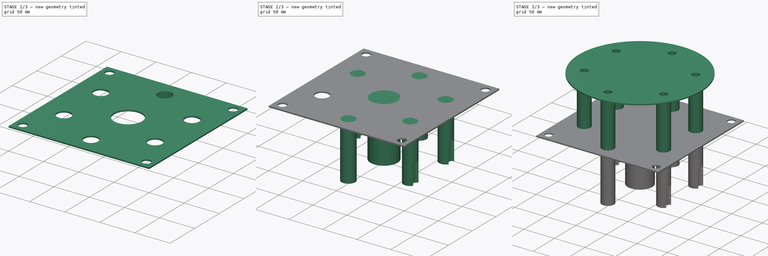
[diagram: build sequence overview — one tinted view per stage of 3, left to right]
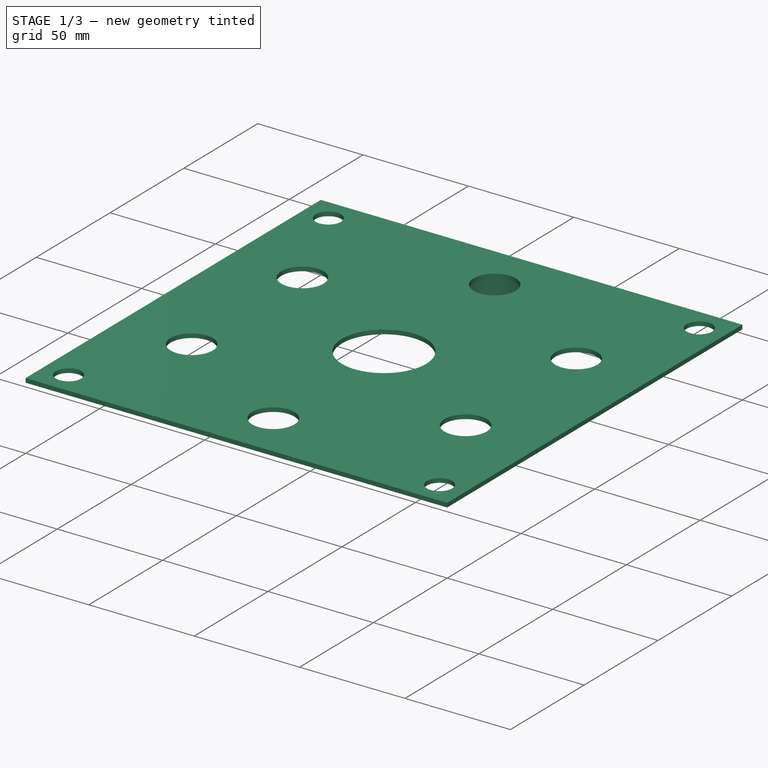
[diagram: stage 1 of 3 — iso view after this stage's code; geometry added in this stage tinted green]
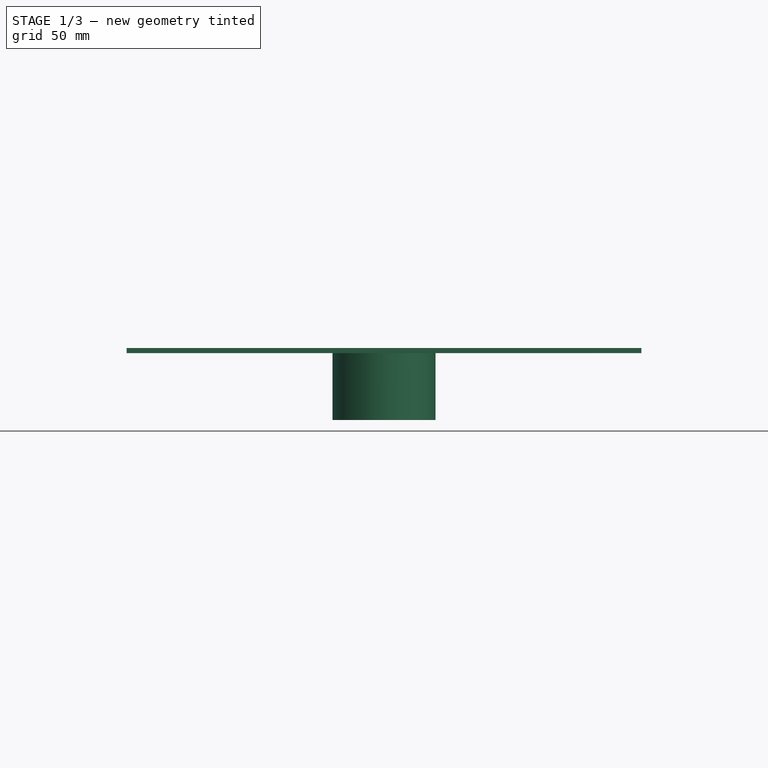
[diagram: stage 1 of 3 — front view after this stage's code; geometry added in this stage tinted green]
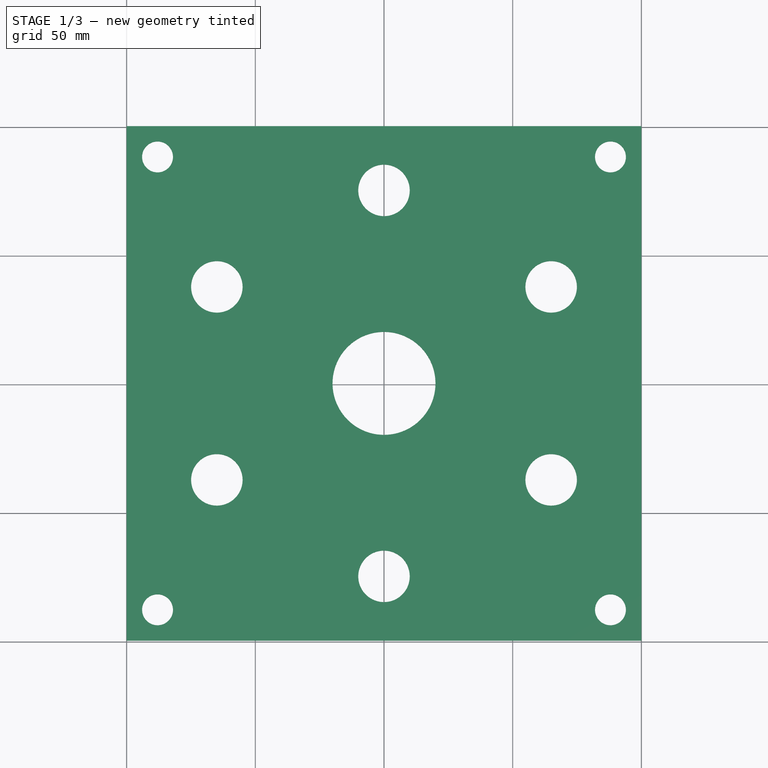
[diagram: stage 1 of 3 — top view after this stage's code; geometry added in this stage tinted green]
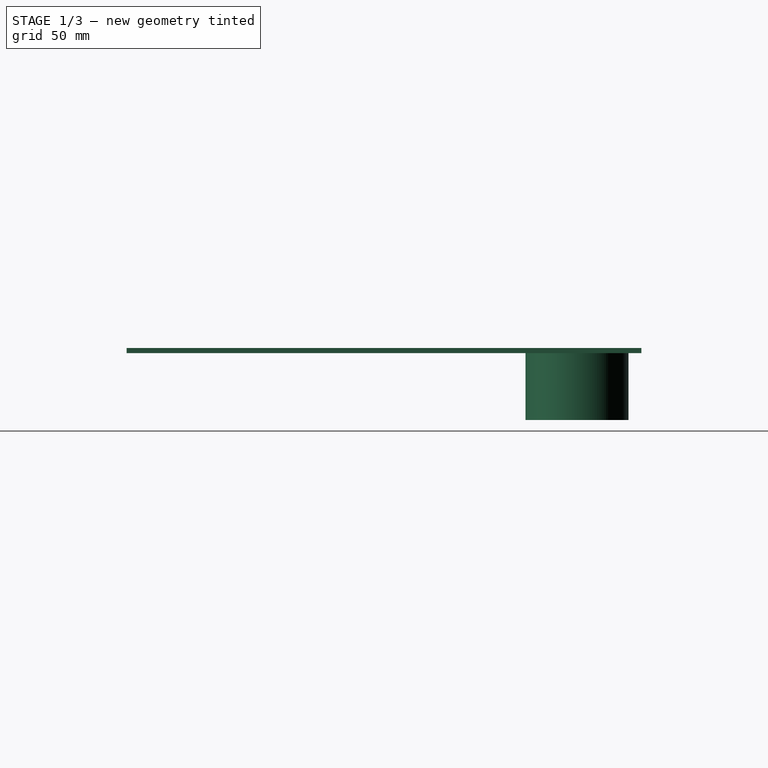
[diagram: stage 1 of 3 — right view after this stage's code; geometry added in this stage tinted green]
FCSTD DOCUMENT  (FreeCAD 0.17R12794 (Git))
Label: robot2
License: All rights reserved
LicenseURL: http://en.wikipedia.org/wiki/All_rights_reserved
objects: Sketcher::SketchObject×5, PartDesign::Pad×4, PartDesign::FeatureBase×3, PartDesign::Body×3, Part::Feature×1, PartDesign::Pocket×1
note: 22 computed .brp shape members not serialized (recipe doc carries the construction recipe); baked Part::Feature solids carry a one-line shape summary decoded from their .brp

FEATURE [Part::Feature] Part__Feature  label="NEMA23_ST57H703"
  shape: bbox 58.58 x 63.99 x 97 mm, 205 faces (baked)
FEATURE [Sketcher::SketchObject] Sketch001
  MapMode = 5
  sketch-geometry (22):
    g0: LineSegment StartX=0 StartY=0 StartZ=0 EndX=200 EndY=0 EndZ=0
    g1: LineSegment StartX=200 StartY=0 StartZ=0 EndX=200 EndY=200 EndZ=0
    g2: LineSegment StartX=200 StartY=200 StartZ=0 EndX=0 EndY=200 EndZ=0
    g3: LineSegment StartX=0 StartY=200 StartZ=0 EndX=0 EndY=0 EndZ=0
    g4: Circle CenterX=12 CenterY=12 CenterZ=0 NormalX=0 NormalY=0 NormalZ=1 AngleXU=0 Radius=6
    g5: Circle CenterX=12 CenterY=188 CenterZ=0 NormalX=0 NormalY=0 NormalZ=1 AngleXU=0 Radius=6
    g6: Circle CenterX=188 CenterY=188 CenterZ=0 NormalX=0 NormalY=0 NormalZ=1 AngleXU=0 Radius=6
    g7: Circle CenterX=188 CenterY=12 CenterZ=0 NormalX=0 NormalY=0 NormalZ=1 AngleXU=0 Radius=6
    g8: LineSegment [constr] StartX=164.952 StartY=62.5 StartZ=0 EndX=164.952 EndY=137.5 EndZ=0
    g9: LineSegment [constr] StartX=164.952 StartY=137.5 StartZ=0 EndX=100 EndY=175 EndZ=0
    g10: LineSegment [constr] StartX=100 StartY=175 StartZ=0 EndX=35.0481 EndY=137.5 EndZ=0
    g11: LineSegment [constr] StartX=35.0481 StartY=137.5 StartZ=0 EndX=35.0481 EndY=62.5 EndZ=0
    g12: LineSegment [constr] StartX=35.0481 StartY=62.5 StartZ=0 EndX=100 EndY=25 EndZ=0
    g13: LineSegment [constr] StartX=100 StartY=25 StartZ=0 EndX=164.952 EndY=62.5 EndZ=0
    g14: Circle [constr] CenterX=100 CenterY=100 CenterZ=0 NormalX=0 NormalY=0 NormalZ=1 AngleXU=0 Radius=75
    g15: Circle CenterX=100 CenterY=175 CenterZ=0 NormalX=0 NormalY=0 NormalZ=1 AngleXU=0 Radius=10
    g16: Circle CenterX=35.0481 CenterY=137.5 CenterZ=0 NormalX=0 NormalY=0 NormalZ=1 AngleXU=0 Radius=10
    g17: Circle CenterX=35.0481 CenterY=62.5 CenterZ=0 NormalX=0 NormalY=0 NormalZ=1 AngleXU=0 Radius=10
    g18: Circle CenterX=100 CenterY=25 CenterZ=0 NormalX=0 NormalY=0 NormalZ=1 AngleXU=0 Radius=10
    g19: Circle CenterX=164.952 CenterY=62.5 CenterZ=0 NormalX=0 NormalY=0 NormalZ=1 AngleXU=0 Radius=10
    g20: Circle CenterX=164.952 CenterY=137.5 CenterZ=0 NormalX=0 NormalY=0 NormalZ=1 AngleXU=0 Radius=10
    g21: Circle CenterX=100 CenterY=100 CenterZ=0 NormalX=0 NormalY=0 NormalZ=1 AngleXU=0 Radius=20
  constraints (54):
    c: Coincident(g0,g1)
    c: Coincident(g1,g2)
    c: Coincident(g2,g3)
    c: Coincident(g3,g0)
    c: Horizontal(g0)
    c: Horizontal(g2)
    c: Vertical(g1)
    c: Vertical(g3)
    c: Coincident(g0,g-1)
    c: DistanceY(g1,g1) = 200
    c: DistanceX(g2,g2) = 200
    c: Radius(g4) = 6
    c: Equal(g4,g5) = 6
    c: DistanceY(g-1,g4) = 12
    c: DistanceX(g-1,g4) = 12
    c: Equal(g5,g6)
    c: Equal(g6,g7)
    c: DistanceY(g4,g7) = 0
    c: DistanceX(g4,g5) = 0
    c: DistanceY(g5,g6) = 0
    c: DistanceX(g6,g7) = 0
    c: DistanceX(g7,g0) = 12
    c: DistanceY(g6,g1) = 12
    c: Coincident(g8,g9)
    c: Coincident(g9,g10)
    c: Coincident(g10,g11)
    c: Coincident(g11,g12)
    c: Coincident(g12,g13)
    c: Coincident(g13,g8)
    c: Equal(g8, g9-g13) x5
    c: PointOnObject(g8,g14)
    c: PointOnObject(g9,g14)
    c: PointOnObject(g10,g14)
    c: PointOnObject(g11,g14)
    c: PointOnObject(g12,g14)
    c: PointOnObject(g13,g14)
    c: DistanceX(g-1,g14) = 100
    c: DistanceY(g-1,g14) = 100
    c: Parallel(g11,g3)
    c: Radius(g14) = 75
    c: Radius(g15) = 10
    c: Coincident(g15,g9)
    c: Equal(g15,g16)
    c: Equal(g16,g17)
    c: Equal(g17,g18)
    c: Equal(g18,g19)
    c: Equal(g19,g20)
    c: Coincident(g16,g10)
    c: Coincident(g17,g11)
    c: Coincident(g18,g12)
    c: Coincident(g19,g8)
    c: Coincident(g20,g8)
    c: Coincident(g21,g14)
    c: Radius(g21) = 20
FEATURE [PartDesign::Pad] Pad  label="bottom"
  Length = 2
  Length2 = 100
  Profile = -> Sketch001
  Type = 0
FEATURE [PartDesign::FeatureBase] BaseFeature
  BaseFeature = -> Pad
FEATURE [PartDesign::Body] Body002
  BaseFeature = -> Pad002
  Group = -> [BaseFeature002]
  Origin = -> Origin002
  Tip = -> BaseFeature002
FEATURE [Sketcher::SketchObject] Sketch004
  ExternalGeometry = -> [BaseFeature]
  MapMode = 5
  Placement = pos=(0,0,0) rot=(1,0,0;3.14159rad)
  Support = -> [BaseFeature]
  sketch-geometry (4):
    g0: LineSegment [constr] StartX=100 StartY=-175 StartZ=0 EndX=164.952 EndY=-137.5 EndZ=0
    g1: LineSegment [constr] StartX=100 StartY=-100 StartZ=0 EndX=100 EndY=-25 EndZ=0
    g2: Circle CenterX=100 CenterY=-175 CenterZ=0 NormalX=0 NormalY=0 NormalZ=1 AngleXU=0 Radius=15
    g3: Circle CenterX=100 CenterY=-175 CenterZ=0 NormalX=0 NormalY=0 NormalZ=1 AngleXU=0 Radius=20
  constraints (9):
    c: Coincident(g1,g-3)
    c: Coincident(g0,g-6)
    c: Coincident(g1,g-5)
    c: Coincident(g0,g-4)
    c: PointOnObject(g2,g1)
    c: PointOnObject(g2,g0)
    c: Radius(g2) = 15
    c: Coincident(g3,g2)
    c: Radius(g3) = 20
FEATURE [PartDesign::Pad] Pad003
  BaseFeature = -> BaseFeature
  Length = 26
  Length2 = 100
  Profile = -> Sketch004
  Type = 0
FEATURE [PartDesign::Body] Body
  BaseFeature = -> Pad
  Group = -> [BaseFeature,Sketch004,Pad003]
  Origin = -> Origin
  Tip = -> Pad003
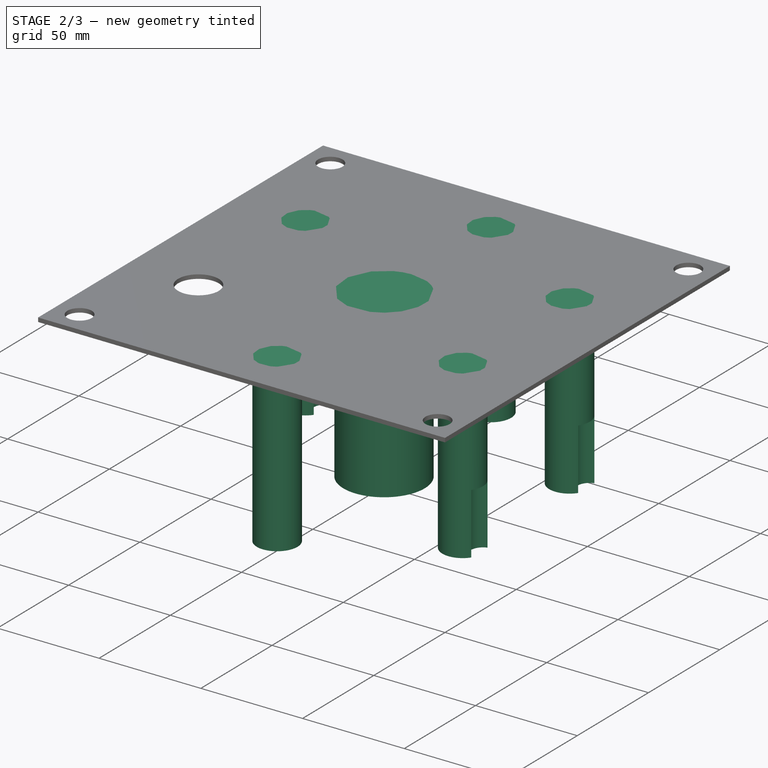
[diagram: stage 2 of 3 — iso view after this stage's code; geometry added in this stage tinted green]
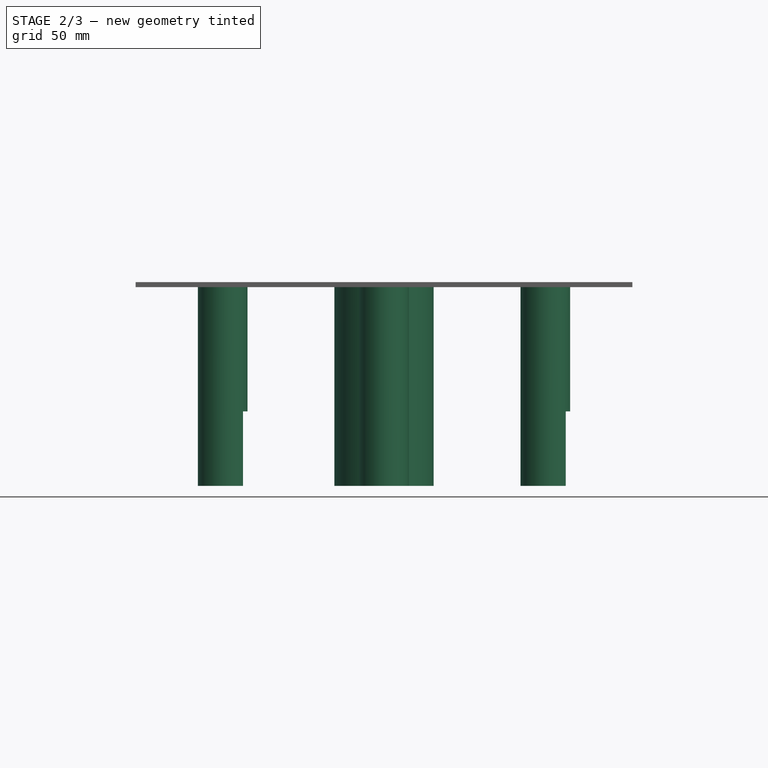
[diagram: stage 2 of 3 — front view after this stage's code; geometry added in this stage tinted green]
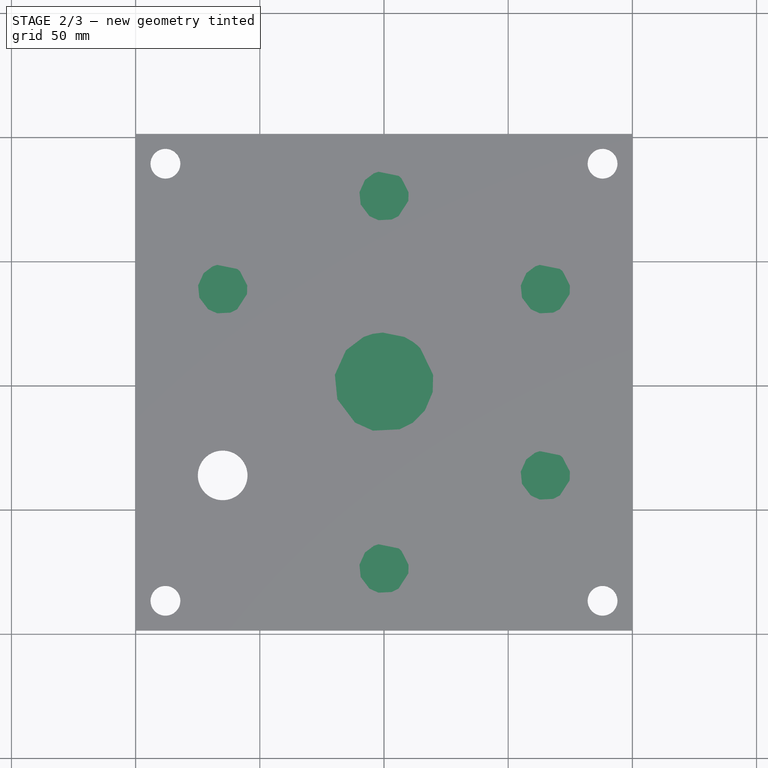
[diagram: stage 2 of 3 — top view after this stage's code; geometry added in this stage tinted green]
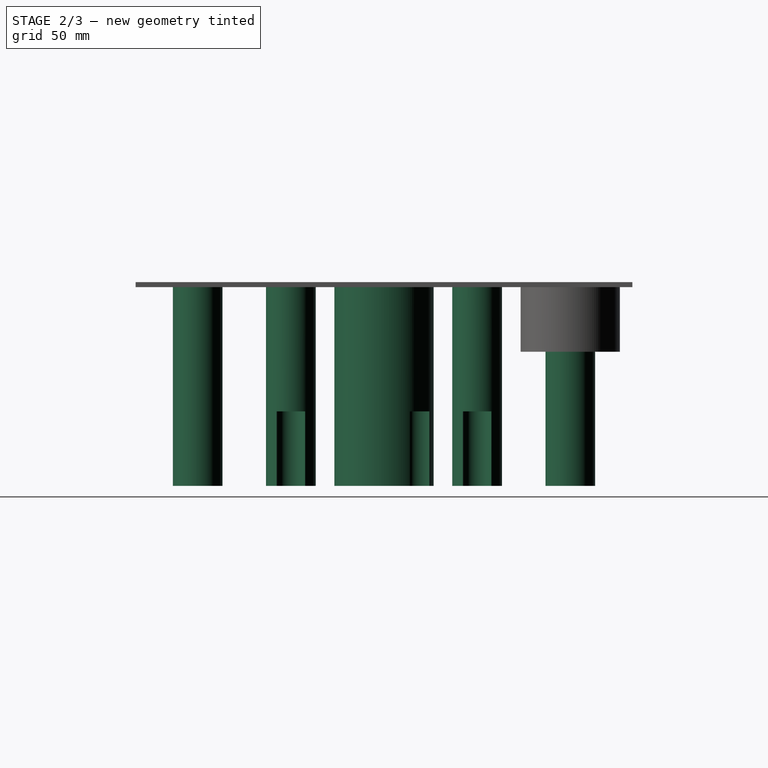
[diagram: stage 2 of 3 — right view after this stage's code; geometry added in this stage tinted green]
FEATURE [Sketcher::SketchObject] Sketch
  ExternalGeometry = -> [Pad]
  MapMode = 5
  Placement = pos=(0,0,0) rot=(1,0,0;3.14159rad)
  Support = -> [Pad]
  sketch-geometry (6):
    g0: Circle CenterX=164.952 CenterY=-62.5 CenterZ=0 NormalX=0 NormalY=0 NormalZ=1 AngleXU=0 Radius=10
    g1: Circle CenterX=100 CenterY=-175 CenterZ=0 NormalX=0 NormalY=0 NormalZ=1 AngleXU=0 Radius=10
    g2: Circle CenterX=100 CenterY=-25 CenterZ=0 NormalX=0 NormalY=0 NormalZ=1 AngleXU=0 Radius=10
    g3: Circle CenterX=35.0481 CenterY=-137.5 CenterZ=0 NormalX=0 NormalY=0 NormalZ=1 AngleXU=0 Radius=10
    g4: Circle CenterX=164.952 CenterY=-137.5 CenterZ=0 NormalX=0 NormalY=0 NormalZ=1 AngleXU=0 Radius=10
    g5: Circle CenterX=100 CenterY=-100 CenterZ=0 NormalX=0 NormalY=0 NormalZ=1 AngleXU=0 Radius=20
  constraints (12):
    c: Equal(g0,g-3)
    c: Coincident(g0,g-3)
    c: Equal(g-4,g1)
    c: Coincident(g-4,g1)
    c: Equal(g-5,g2)
    c: Coincident(g-5,g2)
    c: Equal(g-6,g3)
    c: Coincident(g3,g-6)
    c: Equal(g4,g-8)
    c: Coincident(g4,g-8)
    c: Equal(g5,g-7)
    c: Coincident(g5,g-7)
FEATURE [PartDesign::Pad] Pad001  label="pillars"
  Length = 80
  Length2 = 2
  Profile = -> Sketch
  Type = 4
FEATURE [Sketcher::SketchObject] Sketch002
  ExternalGeometry = -> [Pad001]
  MapMode = 5
  Placement = pos=(0,0,-80) rot=(1,0,0;3.14159rad)
  Support = -> [Pad001]
  sketch-geometry (6):
    g0: Circle CenterX=113.064 CenterY=-114.795 CenterZ=0 NormalX=0 NormalY=0 NormalZ=1 AngleXU=0 Radius=6
    g1: Circle CenterX=35.0481 CenterY=-62.5 CenterZ=0 NormalX=0 NormalY=0 NormalZ=1 AngleXU=0 Radius=6
    g2: Circle CenterX=100 CenterY=-175 CenterZ=0 NormalX=0 NormalY=0 NormalZ=1 AngleXU=0 Radius=6
    g3: Circle CenterX=45.0481 CenterY=-137.5 CenterZ=0 NormalX=0 NormalY=0 NormalZ=1 AngleXU=0 Radius=6
    g4: Circle CenterX=174.952 CenterY=-62.5 CenterZ=0 NormalX=0 NormalY=0 NormalZ=1 AngleXU=0 Radius=6
    g5: Circle CenterX=174.952 CenterY=-137.5 CenterZ=0 NormalX=0 NormalY=0 NormalZ=1 AngleXU=0 Radius=6
  constraints (12):
    c: Radius(g1) = 6
    c: Equal(g1,g0)
    c: Equal(g0,g2)
    c: Equal(g2,g3)
    c: Equal(g3,g4)
    c: Equal(g5,g4)
    c: Coincident(g1,g-8)
    c: Coincident(g0,g-3)
    c: Coincident(g2,g-4)
    c: Coincident(g3,g-5)
    c: Coincident(g-6,g4)
    c: Coincident(g-7,g5)
FEATURE [PartDesign::Pocket] Pocket  label="pillarsbolthole"
  Length = 30
  Profile = -> Sketch002
  Type = 0
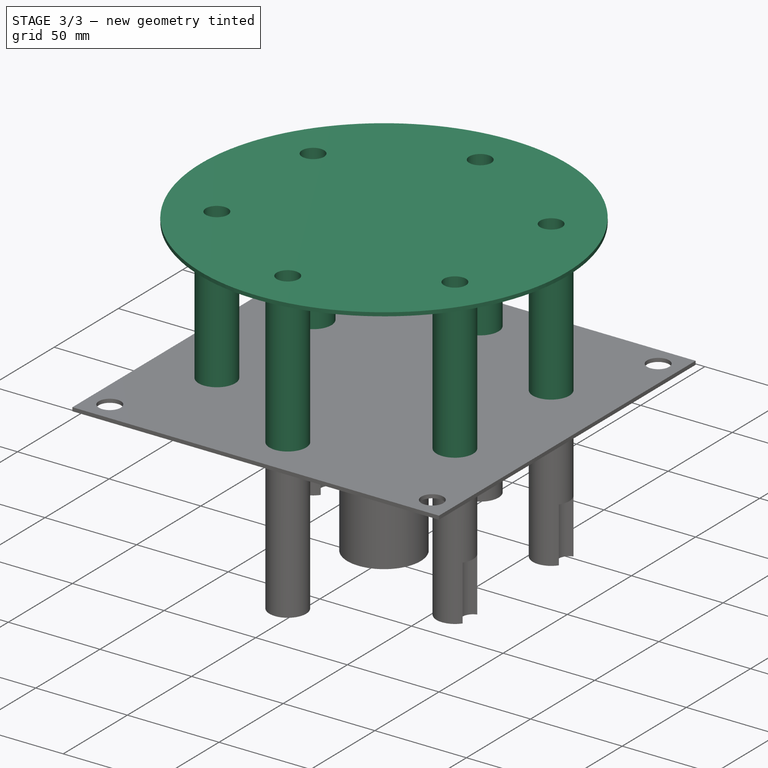
[diagram: stage 3 of 3 — iso view after this stage's code; geometry added in this stage tinted green]
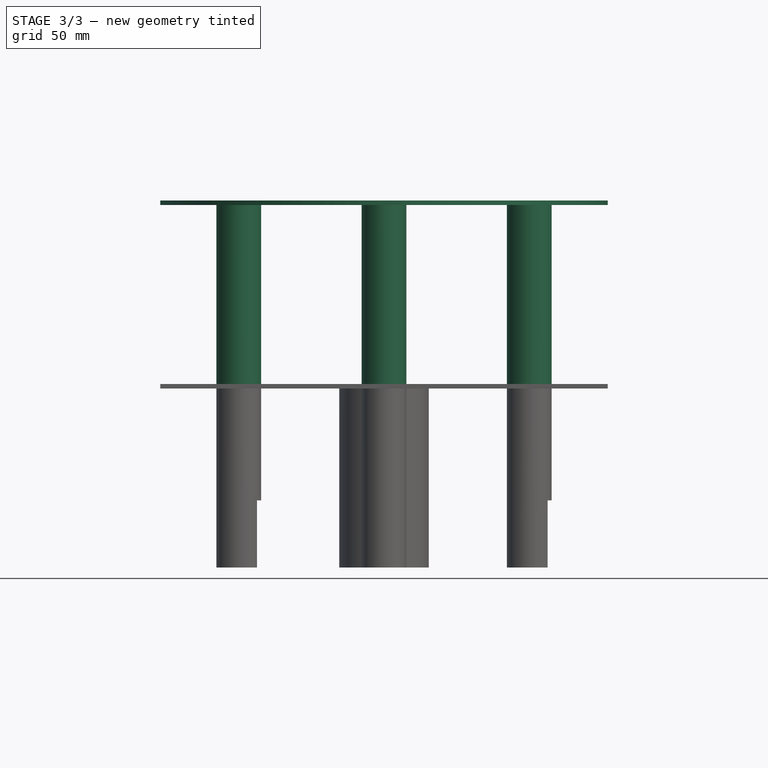
[diagram: stage 3 of 3 — front view after this stage's code; geometry added in this stage tinted green]
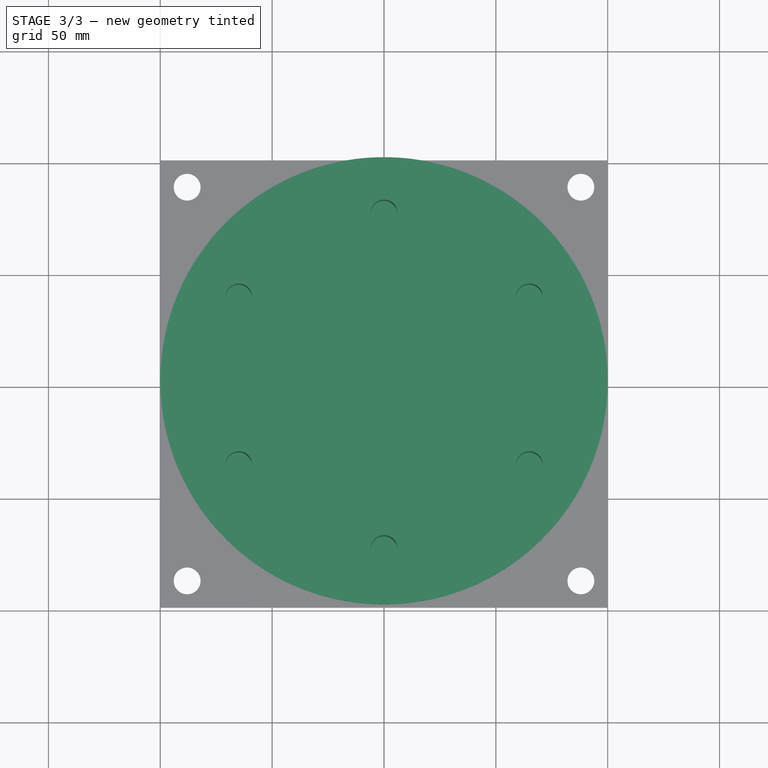
[diagram: stage 3 of 3 — top view after this stage's code; geometry added in this stage tinted green]
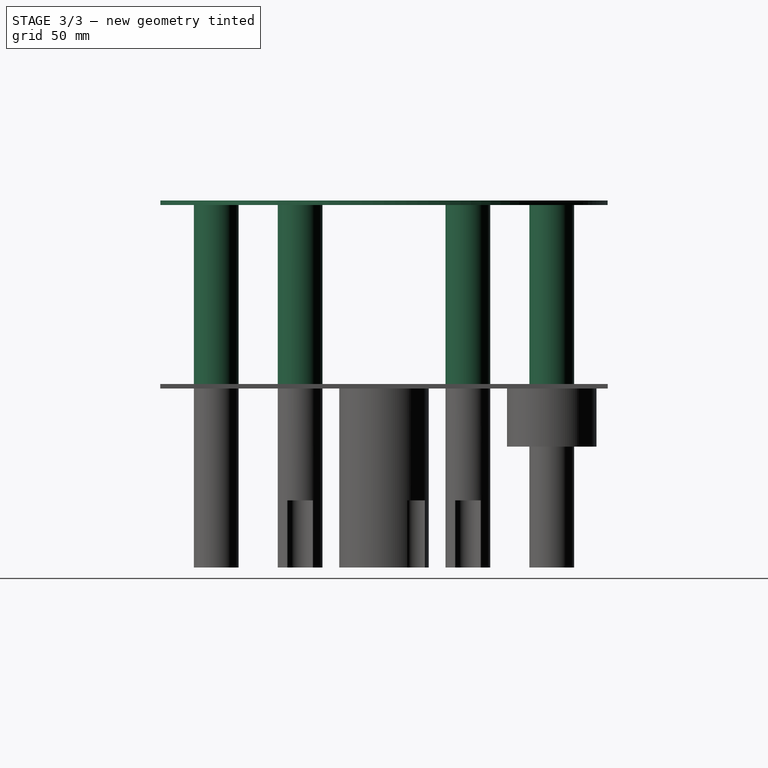
[diagram: stage 3 of 3 — right view after this stage's code; geometry added in this stage tinted green]
FEATURE [Sketcher::SketchObject] Sketch003
  ExternalGeometry = -> [Pocket]
  MapMode = 5
  Placement = pos=(0,0,-80) rot=(1,0,0;3.14159rad)
  Support = -> [Pocket]
  sketch-geometry (10):
    g0: Circle CenterX=46.018 CenterY=-144.775 CenterZ=0 NormalX=0 NormalY=0 NormalZ=1 AngleXU=0 Radius=100
    g1: LineSegment [constr] StartX=100 StartY=-175 StartZ=0 EndX=43.2481 EndY=-143.224 EndZ=0
    g2: LineSegment [constr] StartX=35.0481 StartY=-62.5 StartZ=0 EndX=45.0481 EndY=-137.5 EndZ=0
    g3: Circle [constr] CenterX=174.952 CenterY=-137.5 CenterZ=0 NormalX=0 NormalY=0 NormalZ=1 AngleXU=0 Radius=6
    g4: Circle CenterX=100 CenterY=-175 CenterZ=0 NormalX=0 NormalY=0 NormalZ=1 AngleXU=0 Radius=6
    g5: Circle CenterX=45.0481 CenterY=-137.5 CenterZ=0 NormalX=0 NormalY=0 NormalZ=1 AngleXU=0 Radius=6
    g6: Circle CenterX=43.2481 CenterY=-131.776 CenterZ=0 NormalX=0 NormalY=0 NormalZ=1 AngleXU=0 Radius=6
    g7: Circle CenterX=43.2481 CenterY=-143.224 CenterZ=0 NormalX=0 NormalY=0 NormalZ=1 AngleXU=0 Radius=6
    g8: Circle CenterX=35.0481 CenterY=-62.5 CenterZ=0 NormalX=0 NormalY=0 NormalZ=1 AngleXU=0 Radius=6
    g9: Circle CenterX=174.952 CenterY=-137.5 CenterZ=0 NormalX=0 NormalY=0 NormalZ=1 AngleXU=0 Radius=6
FEATURE [PartDesign::Pad] Pad002  label="centrumplate"
  Length = 2
  Length2 = 100
  Profile = -> Sketch003
  Type = 0
FEATURE [PartDesign::FeatureBase] BaseFeature001
  BaseFeature = -> Pocket
FEATURE [PartDesign::Body] Body001
  BaseFeature = -> Pocket
  Group = -> [BaseFeature001]
  Origin = -> Origin001
  Tip = -> BaseFeature001
FEATURE [PartDesign::FeatureBase] BaseFeature002
  BaseFeature = -> Pad002
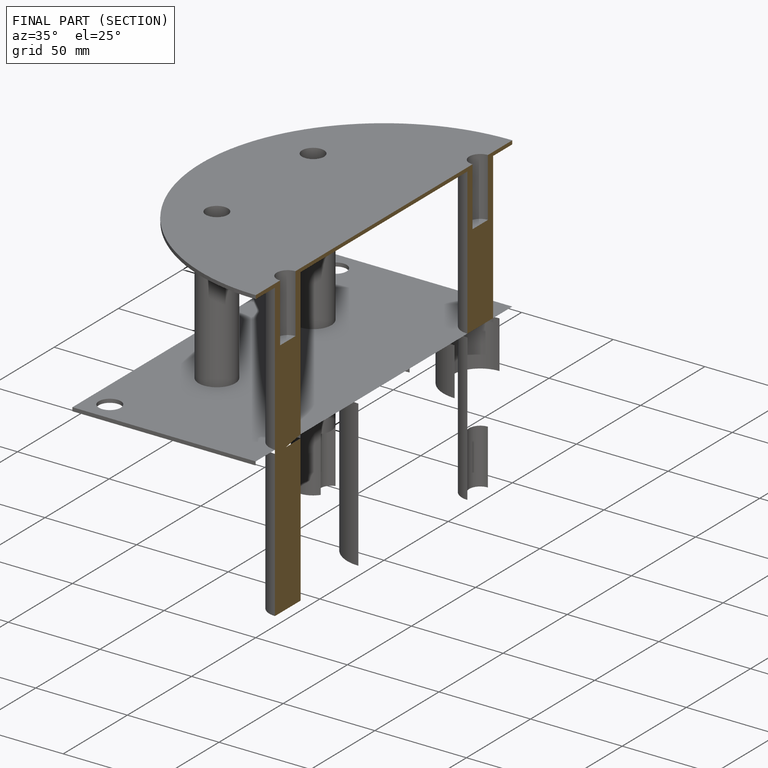
[diagram: finished part — half-section view (interior)]
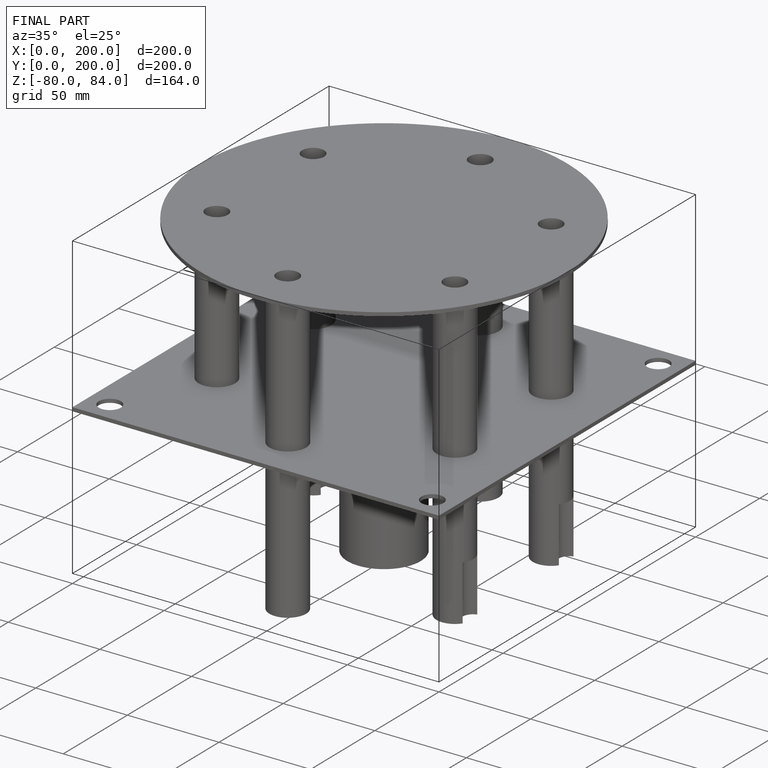
[diagram: finished part — iso view with bounding-box wireframe]
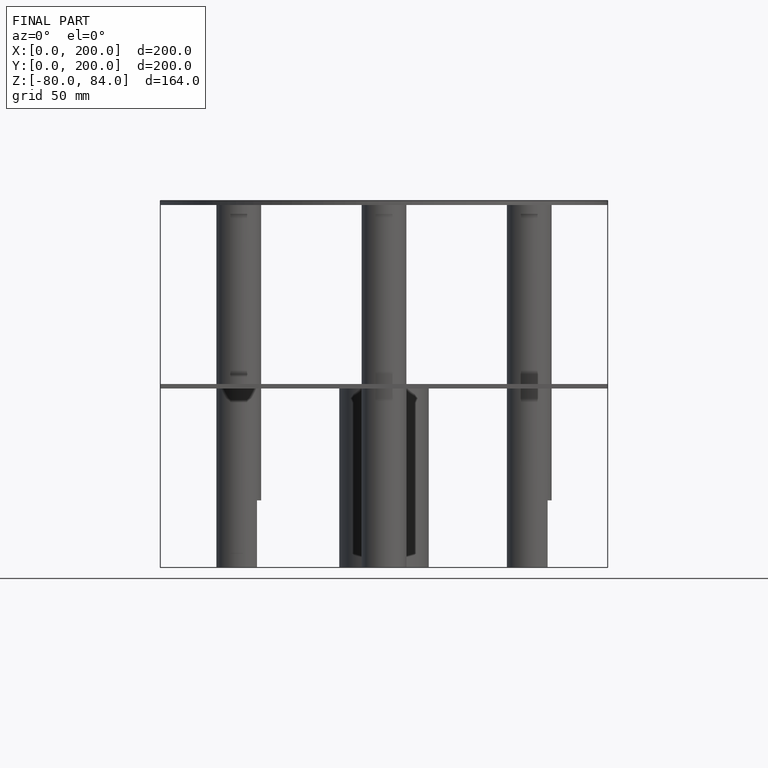
[diagram: finished part — front view with bounding-box wireframe]
